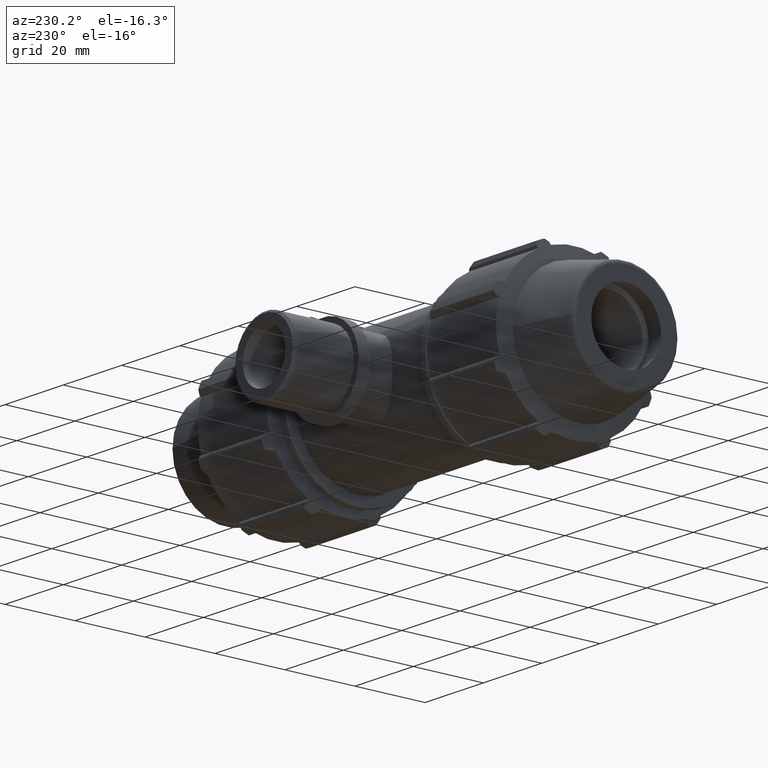
[diagram: clean part render]
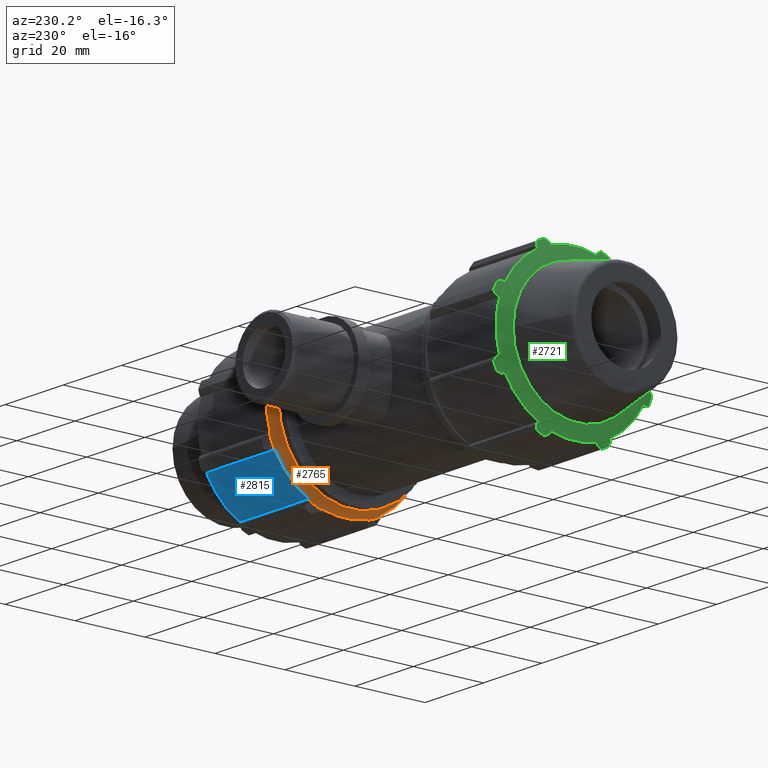
[diagram: same view with three faces highlighted in distinct colors, each labeled with its STEP entity id]
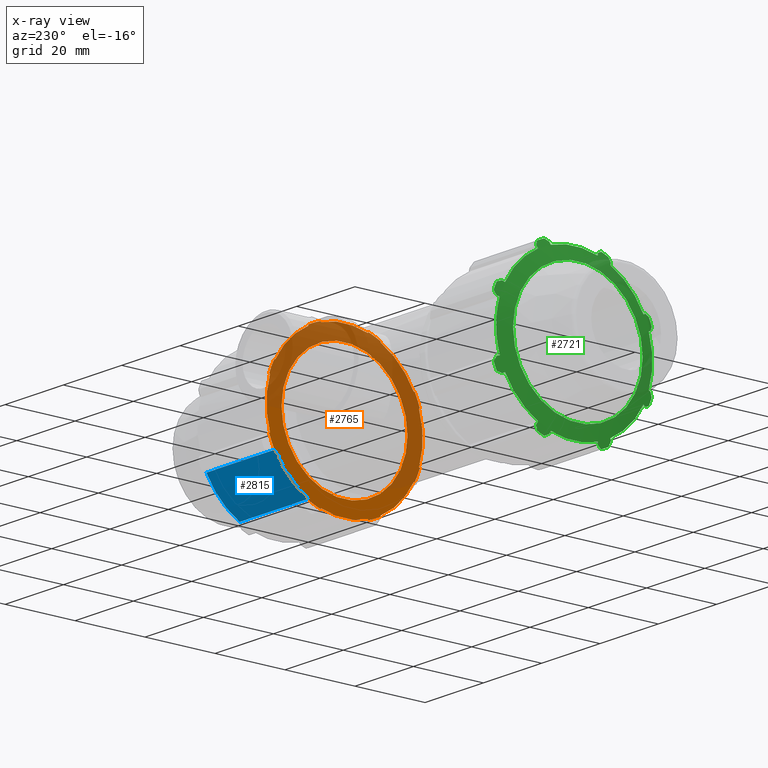
[diagram: x-ray of the same camera — body ghosted, the three highlighted faces saturated]
A machine part, auxiliary view with three faces highlighted in distinct colors.
The next image is the same camera in x-ray (body ghosted, the three faces saturated) — at least one of them is partly hidden behind the body in this view.
Their STEP definitions:

[orange] entity #2765 — the highlighted planar face has unit normal (-1, -0, 0).
#182=LINE('',#4429,#374);
#183=LINE('',#4433,#375);
#184=LINE('',#4437,#376);
#185=LINE('',#4441,#377);
#186=LINE('',#4445,#378);
#187=LINE('',#4449,#379);
#188=LINE('',#4453,#380);
#189=LINE('',#4457,#381);
#190=LINE('',#4461,#382);
#191=LINE('',#4465,#383);
#192=LINE('',#4469,#384);
#193=LINE('',#4473,#385);
#194=LINE('',#4477,#386);
#195=LINE('',#4481,#387);
#196=LINE('',#4485,#388);
#197=LINE('',#4488,#389);
#374=VECTOR('',#3507,0.240000000000005);
#375=VECTOR('',#3510,0.240000000000008);
#376=VECTOR('',#3513,0.239999999999996);
#377=VECTOR('',#3516,0.239999999999997);
#378=VECTOR('',#3519,0.239999999999993);
#379=VECTOR('',#3522,0.239999999999996);
#380=VECTOR('',#3525,0.239999999999996);
#381=VECTOR('',#3528,0.240000000000009);
#382=VECTOR('',#3531,0.240000000000002);
#383=VECTOR('',#3534,0.240000000000002);
#384=VECTOR('',#3537,0.24);
#385=VECTOR('',#3540,0.240000000000018);
#386=VECTOR('',#3543,0.240000000000005);
#387=VECTOR('',#3546,0.240000000000009);
#388=VECTOR('',#3549,0.240000000000009);
#389=VECTOR('',#3552,0.240000000000007);
#509=PLANE('',#2986);
#596=FACE_BOUND('',#878,.T.);
#699=FACE_OUTER_BOUND('',#877,.T.);
#877=EDGE_LOOP('',(#2119,#2120,#2121,#2122,#2123,#2124,#2125,#2126,#2127,
#2128,#2129,#2130,#2131,#2132,#2133,#2134,#2135,#2136,#2137,#2138,#2139,
#2140,#2141,#2142,#2143,#2144,#2145,#2146,#2147,#2148,#2149,#2150));
#878=EDGE_LOOP('',(#2151));
#1034=CIRCLE('',#2985,22.56);
#1035=CIRCLE('',#2987,22.32);
#1036=CIRCLE('',#2988,22.56);
#1037=CIRCLE('',#2989,22.32);
#1038=CIRCLE('',#2990,22.56);
#1039=CIRCLE('',#2991,22.32);
#1040=CIRCLE('',#2992,22.56);
#1041=CIRCLE('',#2993,22.32);
#1042=CIRCLE('',#2994,22.56);
#1043=CIRCLE('',#2995,22.32);
#1044=CIRCLE('',#2996,22.56);
#1045=CIRCLE('',#2997,22.32);
#1046=CIRCLE('',#2998,22.56);
#1047=CIRCLE('',#2999,22.32);
#1048=CIRCLE('',#3000,22.56);
#1049=CIRCLE('',#3001,22.32);
#1050=CIRCLE('',#3002,18.);
#1230=VERTEX_POINT('',#4422);
#1231=VERTEX_POINT('',#4424);
#1232=VERTEX_POINT('',#4428);
#1233=VERTEX_POINT('',#4430);
#1234=VERTEX_POINT('',#4432);
#1235=VERTEX_POINT('',#4434);
#1236=VERTEX_POINT('',#4436);
#1237=VERTEX_POINT('',#4438);
#1238=VERTEX_POINT('',#4440);
#1239=VERTEX_POINT('',#4442);
#1240=VERTEX_POINT('',#4444);
#1241=VERTEX_POINT('',#4446);
#1242=VERTEX_POINT('',#4448);
#1243=VERTEX_POINT('',#4450);
#1244=VERTEX_POINT('',#4452);
#1245=VERTEX_POINT('',#4454);
#1246=VERTEX_POINT('',#4456);
#1247=VERTEX_POINT('',#4458);
#1248=VERTEX_POINT('',#4460);
#1249=VERTEX_POINT('',#4462);
#1250=VERTEX_POINT('',#4464);
#1251=VERTEX_POINT('',#4466);
#1252=VERTEX_POINT('',#4468);
#1253=VERTEX_POINT('',#4470);
#1254=VERTEX_POINT('',#4472);
#1255=VERTEX_POINT('',#4474);
#1256=VERTEX_POINT('',#4476);
#1257=VERTEX_POINT('',#4478);
#1258=VERTEX_POINT('',#4480);
#1259=VERTEX_POINT('',#4482);
#1260=VERTEX_POINT('',#4484);
#1261=VERTEX_POINT('',#4486);
#1262=VERTEX_POINT('',#4489);
#1551=EDGE_CURVE('',#1230,#1231,#1034,.T.);
#1553=EDGE_CURVE('',#1230,#1232,#182,.T.);
#1554=EDGE_CURVE('',#1232,#1233,#1035,.T.);
#1555=EDGE_CURVE('',#1233,#1234,#183,.T.);
#1556=EDGE_CURVE('',#1235,#1234,#1036,.T.);
#1557=EDGE_CURVE('',#1235,#1236,#184,.T.);
#1558=EDGE_CURVE('',#1236,#1237,#1037,.T.);
#1559=EDGE_CURVE('',#1237,#1238,#185,.T.);
#1560=EDGE_CURVE('',#1239,#1238,#1038,.T.);
#1561=EDGE_CURVE('',#1239,#1240,#186,.T.);
#1562=EDGE_CURVE('',#1240,#1241,#1039,.T.);
#1563=EDGE_CURVE('',#1241,#1242,#187,.T.);
#1564=EDGE_CURVE('',#1243,#1242,#1040,.T.);
#1565=EDGE_CURVE('',#1243,#1244,#188,.T.);
#1566=EDGE_CURVE('',#1244,#1245,#1041,.T.);
#1567=EDGE_CURVE('',#1245,#1246,#189,.T.);
#1568=EDGE_CURVE('',#1247,#1246,#1042,.T.);
#1569=EDGE_CURVE('',#1247,#1248,#190,.T.);
#1570=EDGE_CURVE('',#1248,#1249,#1043,.T.);
#1571=EDGE_CURVE('',#1249,#1250,#191,.T.);
#1572=EDGE_CURVE('',#1251,#1250,#1044,.T.);
#1573=EDGE_CURVE('',#1251,#1252,#192,.T.);
#1574=EDGE_CURVE('',#1252,#1253,#1045,.T.);
#1575=EDGE_CURVE('',#1253,#1254,#193,.T.);
#1576=EDGE_CURVE('',#1255,#1254,#1046,.T.);
#1577=EDGE_CURVE('',#1255,#1256,#194,.T.);
#1578=EDGE_CURVE('',#1256,#1257,#1047,.T.);
#1579=EDGE_CURVE('',#1257,#1258,#195,.T.);
#1580=EDGE_CURVE('',#1259,#1258,#1048,.T.);
#1581=EDGE_CURVE('',#1259,#1260,#196,.T.);
#1582=EDGE_CURVE('',#1260,#1261,#1049,.T.);
#1583=EDGE_CURVE('',#1261,#1231,#197,.T.);
#1584=EDGE_CURVE('',#1262,#1262,#1050,.T.);
#2119=ORIENTED_EDGE('',*,*,#1551,.F.);
#2120=ORIENTED_EDGE('',*,*,#1553,.T.);
#2121=ORIENTED_EDGE('',*,*,#1554,.T.);
#2122=ORIENTED_EDGE('',*,*,#1555,.T.);
#2123=ORIENTED_EDGE('',*,*,#1556,.F.);
#2124=ORIENTED_EDGE('',*,*,#1557,.T.);
#2125=ORIENTED_EDGE('',*,*,#1558,.T.);
#2126=ORIENTED_EDGE('',*,*,#1559,.T.);
#2127=ORIENTED_EDGE('',*,*,#1560,.F.);
#2128=ORIENTED_EDGE('',*,*,#1561,.T.);
#2129=ORIENTED_EDGE('',*,*,#1562,.T.);
#2130=ORIENTED_EDGE('',*,*,#1563,.T.);
#2131=ORIENTED_EDGE('',*,*,#1564,.F.);
#2132=ORIENTED_EDGE('',*,*,#1565,.T.);
#2133=ORIENTED_EDGE('',*,*,#1566,.T.);
#2134=ORIENTED_EDGE('',*,*,#1567,.T.);
#2135=ORIENTED_EDGE('',*,*,#1568,.F.);
#2136=ORIENTED_EDGE('',*,*,#1569,.T.);
#2137=ORIENTED_EDGE('',*,*,#1570,.T.);
#2138=ORIENTED_EDGE('',*,*,#1571,.T.);
#2139=ORIENTED_EDGE('',*,*,#1572,.F.);
#2140=ORIENTED_EDGE('',*,*,#1573,.T.);
#2141=ORIENTED_EDGE('',*,*,#1574,.T.);
#2142=ORIENTED_EDGE('',*,*,#1575,.T.);
#2143=ORIENTED_EDGE('',*,*,#1576,.F.);
#2144=ORIENTED_EDGE('',*,*,#1577,.T.);
#2145=ORIENTED_EDGE('',*,*,#1578,.T.);
#2146=ORIENTED_EDGE('',*,*,#1579,.T.);
#2147=ORIENTED_EDGE('',*,*,#1580,.F.);
#2148=ORIENTED_EDGE('',*,*,#1581,.T.);
#2149=ORIENTED_EDGE('',*,*,#1582,.T.);
#2150=ORIENTED_EDGE('',*,*,#1583,.T.);
#2151=ORIENTED_EDGE('',*,*,#1584,.T.);
#2765=ADVANCED_FACE('',(#699,#596),#509,.T.);
#2985=AXIS2_PLACEMENT_3D('',#4425,#3502,#3503);
#2986=AXIS2_PLACEMENT_3D('',#4427,#3505,#3506);
#2987=AXIS2_PLACEMENT_3D('',#4431,#3508,#3509);
#2988=AXIS2_PLACEMENT_3D('',#4435,#3511,#3512);
#2989=AXIS2_PLACEMENT_3D('',#4439,#3514,#3515);
#2990=AXIS2_PLACEMENT_3D('',#4443,#3517,#3518);
#2991=AXIS2_PLACEMENT_3D('',#4447,#3520,#3521);
#2992=AXIS2_PLACEMENT_3D('',#4451,#3523,#3524);
#2993=AXIS2_PLACEMENT_3D('',#4455,#3526,#3527);
#2994=AXIS2_PLACEMENT_3D('',#4459,#3529,#3530);
#2995=AXIS2_PLACEMENT_3D('',#4463,#3532,#3533);
#2996=AXIS2_PLACEMENT_3D('',#4467,#3535,#3536);
#2997=AXIS2_PLACEMENT_3D('',#4471,#3538,#3539);
#2998=AXIS2_PLACEMENT_3D('',#4475,#3541,#3542);
#2999=AXIS2_PLACEMENT_3D('',#4479,#3544,#3545);
#3000=AXIS2_PLACEMENT_3D('',#4483,#3547,#3548);
#3001=AXIS2_PLACEMENT_3D('',#4487,#3550,#3551);
#3002=AXIS2_PLACEMENT_3D('',#4490,#3553,#3554);
#3502=DIRECTION('center_axis',(1.,4.01311517903141E-16,0.));
#3503=DIRECTION('ref_axis',(4.01311517903142E-16,-1.,0.));
#3505=DIRECTION('center_axis',(-1.,-4.01311517903141E-16,0.));
#3506=DIRECTION('ref_axis',(0.,0.,1.));
#3507=DIRECTION('',(-1.20676700841338E-16,0.300705799504273,-0.953716950748227));
#3508=DIRECTION('center_axis',(-1.,-4.01311517903141E-16,0.));
#3509=DIRECTION('ref_axis',(3.88945856522847E-16,0.300705799504273,-0.953716950748227));
#3510=DIRECTION('',(-1.20676700841337E-16,0.300705799504273,0.953716950748227));
#3511=DIRECTION('center_axis',(1.,4.01311517903141E-16,0.));
#3512=DIRECTION('ref_axis',(-4.01311517903142E-16,1.,0.));
#3513=DIRECTION('',(1.85305036867022E-16,-0.461748613235034,-0.887010833178222));
#3514=DIRECTION('center_axis',(-1.,-4.01311517903141E-16,0.));
#3515=DIRECTION('ref_axis',(3.88945856522847E-16,-0.461748613235034,-0.887010833178222));
#3516=DIRECTION('',(-3.55967663859282E-16,0.887010833178222,0.461748613235034));
#3517=DIRECTION('center_axis',(1.,4.01311517903141E-16,0.));
#3518=DIRECTION('ref_axis',(-4.01311517903142E-16,1.,0.));
#3519=DIRECTION('',(3.82737597154727E-16,-0.953716950748227,-0.300705799504273));
#3520=DIRECTION('center_axis',(-1.,-4.01311517903141E-16,0.));
#3521=DIRECTION('ref_axis',(3.88945856522847E-16,-0.953716950748227,-0.300705799504273));
#3522=DIRECTION('',(-3.82737597154727E-16,0.953716950748227,-0.300705799504273));
#3523=DIRECTION('center_axis',(1.,4.01311517903141E-16,0.));
#3524=DIRECTION('ref_axis',(-4.01311517903142E-16,1.,0.));
#3525=DIRECTION('',(3.55967663859282E-16,-0.887010833178222,0.461748613235034));
#3526=DIRECTION('center_axis',(-1.,-4.01311517903141E-16,0.));
#3527=DIRECTION('ref_axis',(3.88945856522847E-16,-0.887010833178221,0.461748613235034));
#3528=DIRECTION('',(-1.85305036867022E-16,0.461748613235034,-0.887010833178222));
#3529=DIRECTION('center_axis',(1.,4.01311517903141E-16,0.));
#3530=DIRECTION('ref_axis',(-4.01311517903142E-16,1.,0.));
#3531=DIRECTION('',(1.20676700841338E-16,-0.300705799504273,0.953716950748227));
#3532=DIRECTION('center_axis',(-1.,-4.01311517903141E-16,0.));
#3533=DIRECTION('ref_axis',(3.88945856522847E-16,-0.300705799504273,0.953716950748227));
#3534=DIRECTION('',(1.20676700841338E-16,-0.300705799504273,-0.953716950748227));
#3535=DIRECTION('center_axis',(1.,4.01311517903141E-16,0.));
#3536=DIRECTION('ref_axis',(4.01311517903142E-16,-1.,0.));
#3537=DIRECTION('',(-1.85305036867022E-16,0.461748613235034,0.887010833178222));
#3538=DIRECTION('center_axis',(-1.,-4.01311517903141E-16,0.));
#3539=DIRECTION('ref_axis',(3.88945856522847E-16,0.461748613235034,0.887010833178221));
#3540=DIRECTION('',(3.55967663859282E-16,-0.887010833178222,-0.461748613235034));
#3541=DIRECTION('center_axis',(1.,4.01311517903141E-16,0.));
#3542=DIRECTION('ref_axis',(4.01311517903142E-16,-1.,0.));
#3543=DIRECTION('',(-3.82737597154727E-16,0.953716950748227,0.300705799504273));
#3544=DIRECTION('center_axis',(-1.,-4.01311517903141E-16,0.));
#3545=DIRECTION('ref_axis',(3.88945856522847E-16,0.953716950748227,0.300705799504273));
#3546=DIRECTION('',(3.82737597154727E-16,-0.953716950748227,0.300705799504273));
#3547=DIRECTION('center_axis',(1.,4.01311517903141E-16,0.));
#3548=DIRECTION('ref_axis',(4.01311517903142E-16,-1.,0.));
#3549=DIRECTION('',(-3.55967663859282E-16,0.887010833178222,-0.461748613235034));
#3550=DIRECTION('center_axis',(-1.,-4.01311517903141E-16,0.));
#3551=DIRECTION('ref_axis',(3.88945856522847E-16,0.887010833178222,-0.461748613235034));
#3552=DIRECTION('',(1.85305036867022E-16,-0.461748613235034,0.887010833178222));
#3553=DIRECTION('center_axis',(1.,4.01311517903141E-16,0.));
#3554=DIRECTION('ref_axis',(0.,0.,-1.));
#4422=CARTESIAN_POINT('',(27.6,-6.7839228368164,21.51585440888));
#4424=CARTESIAN_POINT('',(27.6,-10.4170487145824,20.0109643965007));
#4425=CARTESIAN_POINT('Origin',(27.6,1.10761978941267E-14,0.));
#4427=CARTESIAN_POINT('Origin',(27.6,24.,0.));
#4428=CARTESIAN_POINT('',(27.6,-6.71175344493536,21.2869623407004));
#4429=CARTESIAN_POINT('',(27.6,-2.52338185978522,8.00314479087244));
#4430=CARTESIAN_POINT('',(27.6,6.71175344493539,21.2869623407004));
#4431=CARTESIAN_POINT('Origin',(27.6,1.57032032117994E-14,-4.62700531767269E-15));
#4432=CARTESIAN_POINT('',(27.6,6.78392283681641,21.51585440888));
#4433=CARTESIAN_POINT('',(27.6,4.44096445673375,14.0849397884565));
#4434=CARTESIAN_POINT('',(27.6,10.4170487145824,20.0109643965007));
#4435=CARTESIAN_POINT('Origin',(27.6,1.10761978941267E-14,0.));
#4436=CARTESIAN_POINT('',(27.6,10.306229047406,19.7980817965379));
#4437=CARTESIAN_POINT('',(27.6,8.09952474071414,15.5590422638726));
#4438=CARTESIAN_POINT('',(27.6,19.7980817965379,10.306229047406));
#4439=CARTESIAN_POINT('Origin',(27.6,1.24314163750868E-14,-3.27178683671258E-15));
#4440=CARTESIAN_POINT('',(27.6,20.0109643965007,10.4170487145824));
#4441=CARTESIAN_POINT('',(27.6,19.3404995163752,10.0680267894369));
#4442=CARTESIAN_POINT('',(27.6,21.51585440888,6.78392283681641));
#4443=CARTESIAN_POINT('Origin',(27.6,1.10761978941267E-14,0.));
#4444=CARTESIAN_POINT('',(27.6,21.2869623407004,6.71175344493538));
#4445=CARTESIAN_POINT('',(27.6,22.3595156747127,7.04992821215756));
#4446=CARTESIAN_POINT('',(27.6,21.2869623407004,-6.71175344493538));
#4447=CARTESIAN_POINT('Origin',(27.6,1.10761978941267E-14,0.));
#4448=CARTESIAN_POINT('',(27.6,21.51585440888,-6.7839228368164));
#4449=CARTESIAN_POINT('',(27.6,21.5583934360842,-6.79733534057396));
#4450=CARTESIAN_POINT('',(27.6,20.0109643965007,-10.4170487145824));
#4451=CARTESIAN_POINT('Origin',(27.6,1.10761978941267E-14,0.));
#4452=CARTESIAN_POINT('',(27.6,19.7980817965379,-10.306229047406));
#4453=CARTESIAN_POINT('',(27.6,20.0855886162449,-10.4558956245544));
#4454=CARTESIAN_POINT('',(27.6,10.306229047406,-19.7980817965379));
#4455=CARTESIAN_POINT('Origin',(27.6,1.24314163750868E-14,3.27178683671258E-15));
#4456=CARTESIAN_POINT('',(27.6,10.4170487145824,-20.0109643965007));
#4457=CARTESIAN_POINT('',(27.6,7.71165590559671,-14.8139531640029));
#4458=CARTESIAN_POINT('',(27.6,6.78392283681642,-21.51585440888));
#4459=CARTESIAN_POINT('Origin',(27.6,1.10761978941267E-14,0.));
#4460=CARTESIAN_POINT('',(27.6,6.71175344493539,-21.2869623407004));
#4461=CARTESIAN_POINT('',(27.6,4.69355732831734,-14.886062027085));
#4462=CARTESIAN_POINT('',(27.6,-6.71175344493536,-21.2869623407004));
#4463=CARTESIAN_POINT('Origin',(27.6,1.57032032117994E-14,4.6270053176727E-15));
#4464=CARTESIAN_POINT('',(27.6,-6.78392283681639,-21.51585440888));
#4465=CARTESIAN_POINT('',(27.6,-2.27078898820163,-7.20202255224394));
#4466=CARTESIAN_POINT('',(27.6,-10.4170487145823,-20.0109643965007));
#4467=CARTESIAN_POINT('Origin',(27.6,1.10761978941267E-14,0.));
#4468=CARTESIAN_POINT('',(27.6,-10.3062290474059,-19.7980817965379));
#4469=CARTESIAN_POINT('',(27.6,-2.98244197692666,-5.72921773240471));
#4470=CARTESIAN_POINT('',(27.6,-19.7980817965379,-10.306229047406));
#4471=CARTESIAN_POINT('Origin',(27.6,1.8974990048512E-14,3.27178683671258E-15));
#4472=CARTESIAN_POINT('',(27.6,-20.0109643965007,-10.4170487145824));
#4473=CARTESIAN_POINT('',(27.6,-0.457582280162667,-0.238202257969025));
#4474=CARTESIAN_POINT('',(27.6,-21.51585440888,-6.78392283681641));
#4475=CARTESIAN_POINT('Origin',(27.6,1.10761978941267E-14,0.));
#4476=CARTESIAN_POINT('',(27.6,-21.2869623407004,-6.71175344493537));
#4477=CARTESIAN_POINT('',(27.6,-0.529691143244754,-0.167010975945));
#4478=CARTESIAN_POINT('',(27.6,-21.2869623407004,6.71175344493538));
#4479=CARTESIAN_POINT('Origin',(27.6,2.03302085294721E-14,1.97215226305253E-30));
#4480=CARTESIAN_POINT('',(27.6,-21.51585440888,6.7839228368164));
#4481=CARTESIAN_POINT('',(27.6,0.271431095383751,-0.0855818956385884));
#4482=CARTESIAN_POINT('',(27.6,-20.0109643965007,10.4170487145824));
#4483=CARTESIAN_POINT('Origin',(27.6,1.10761978941267E-14,0.));
#4484=CARTESIAN_POINT('',(27.6,-19.7980817965379,10.306229047406));
#4485=CARTESIAN_POINT('',(27.6,-1.20267138003237,0.626071093086453));
#4486=CARTESIAN_POINT('',(27.6,-10.3062290474059,19.7980817965379));
#4487=CARTESIAN_POINT('Origin',(27.6,1.8974990048512E-14,-3.27178683671258E-15));
#4488=CARTESIAN_POINT('',(27.6,-2.59457314180924,4.984128632535));
#4489=CARTESIAN_POINT('',(27.6,18.,0.));
#4490=CARTESIAN_POINT('Origin',(27.6,1.10761978941267E-14,0.));

[blue] entity #2815 — the highlighted cylindrical surface (partial cylindrical patch) has radius 22.32 mm, axis along (1, 0, -0).
#230=LINE('',#4626,#422);
#257=LINE('',#4780,#449);
#422=VECTOR('',#3629,23.6052845743094);
#449=VECTOR('',#3732,23.6052845743094);
#749=FACE_OUTER_BOUND('',#937,.T.);
#937=EDGE_LOOP('',(#2407,#2408,#2409,#2410));
#1041=CIRCLE('',#2993,22.32);
#1076=CIRCLE('',#3057,22.32);
#1244=VERTEX_POINT('',#4452);
#1245=VERTEX_POINT('',#4454);
#1299=VERTEX_POINT('',#4624);
#1342=VERTEX_POINT('',#4770);
#1566=EDGE_CURVE('',#1244,#1245,#1041,.T.);
#1637=EDGE_CURVE('',#1244,#1299,#230,.T.);
#1697=EDGE_CURVE('',#1342,#1299,#1076,.T.);
#1702=EDGE_CURVE('',#1245,#1342,#257,.T.);
#2407=ORIENTED_EDGE('',*,*,#1697,.F.);
#2408=ORIENTED_EDGE('',*,*,#1702,.F.);
#2409=ORIENTED_EDGE('',*,*,#1566,.F.);
#2410=ORIENTED_EDGE('',*,*,#1637,.T.);
#2511=CYLINDRICAL_SURFACE('',#3086,22.32);
#2815=ADVANCED_FACE('',(#749),#2511,.T.);
#2993=AXIS2_PLACEMENT_3D('',#4455,#3526,#3527);
#3057=AXIS2_PLACEMENT_3D('',#4772,#3720,#3721);
#3086=AXIS2_PLACEMENT_3D('',#4829,#3799,#3800);
#3526=DIRECTION('center_axis',(-1.,-4.01311517903141E-16,0.));
#3527=DIRECTION('ref_axis',(3.88945856522847E-16,-0.887010833178221,0.461748613235034));
#3629=DIRECTION('',(1.,2.88373036094144E-16,-2.88373036094144E-16));
#3720=DIRECTION('center_axis',(1.,2.88373036094144E-16,-2.88373036094144E-16));
#3721=DIRECTION('ref_axis',(3.88945856522847E-16,-0.887010833178221,0.461748613235034));
#3732=DIRECTION('',(1.,2.88373036094144E-16,-2.88373036094144E-16));
#3799=DIRECTION('center_axis',(1.,2.88373036094144E-16,-2.88373036094144E-16));
#3800=DIRECTION('ref_axis',(3.88945856522847E-16,-0.887010833178221,0.461748613235034));
#4452=CARTESIAN_POINT('',(27.6,19.7980817965379,-10.306229047406));
#4454=CARTESIAN_POINT('',(27.6,10.306229047406,-19.7980817965379));
#4455=CARTESIAN_POINT('Origin',(27.6,1.24314163750868E-14,3.27178683671258E-15));
#4624=CARTESIAN_POINT('',(51.2052845743094,19.7980817965379,-10.306229047406));
#4626=CARTESIAN_POINT('',(27.6,19.7980817965379,-10.306229047406));
#4770=CARTESIAN_POINT('',(51.2052845743094,10.306229047406,-19.7980817965379));
#4772=CARTESIAN_POINT('Origin',(51.2052845743094,1.92385439556467E-14,-3.53534074384727E-15));
#4780=CARTESIAN_POINT('',(27.6,10.306229047406,-19.7980817965379));
#4829=CARTESIAN_POINT('Origin',(27.6,1.24314163750868E-14,3.27178683671258E-15));

[green] entity #2721 — the highlighted conical surface has half-angle 72 deg.
#22=(
BOUNDED_CURVE()
B_SPLINE_CURVE(2,(#4052,#4053,#4054),.UNSPECIFIED.,.F.,.F.)
B_SPLINE_CURVE_WITH_KNOTS((3,3),(0.,0.121463682059246),.UNSPECIFIED.)
CURVE()
GEOMETRIC_REPRESENTATION_ITEM()
RATIONAL_B_SPLINE_CURVE((1.,1.00305784693904,1.0053037177392))
REPRESENTATION_ITEM('')
);
#25=(
BOUNDED_CURVE()
B_SPLINE_CURVE(2,(#4078,#4079,#4080),.UNSPECIFIED.,.F.,.F.)
B_SPLINE_CURVE_WITH_KNOTS((3,3),(0.,0.121463682059244),.UNSPECIFIED.)
CURVE()
GEOMETRIC_REPRESENTATION_ITEM()
RATIONAL_B_SPLINE_CURVE((1.,1.00305784693904,1.00530371773921))
REPRESENTATION_ITEM('')
);
#28=(
BOUNDED_CURVE()
B_SPLINE_CURVE(2,(#4104,#4105,#4106),.UNSPECIFIED.,.F.,.F.)
B_SPLINE_CURVE_WITH_KNOTS((3,3),(0.,0.121463682059266),.UNSPECIFIED.)
CURVE()
GEOMETRIC_REPRESENTATION_ITEM()
RATIONAL_B_SPLINE_CURVE((1.,1.00305784693901,1.00530371773915))
REPRESENTATION_ITEM('')
);
#31=(
BOUNDED_CURVE()
B_SPLINE_CURVE(2,(#4130,#4131,#4132),.UNSPECIFIED.,.F.,.F.)
B_SPLINE_CURVE_WITH_KNOTS((3,3),(0.,0.121463682059253),.UNSPECIFIED.)
CURVE()
GEOMETRIC_REPRESENTATION_ITEM()
RATIONAL_B_SPLINE_CURVE((1.,1.00305784693903,1.00530371773919))
REPRESENTATION_ITEM('')
);
#34=(
BOUNDED_CURVE()
B_SPLINE_CURVE(2,(#4156,#4157,#4158),.UNSPECIFIED.,.F.,.F.)
B_SPLINE_CURVE_WITH_KNOTS((3,3),(0.,0.12146368205926),.UNSPECIFIED.)
CURVE()
GEOMETRIC_REPRESENTATION_ITEM()
RATIONAL_B_SPLINE_CURVE((1.,1.00305784693904,1.00530371773919))
REPRESENTATION_ITEM('')
);
#37=(
BOUNDED_CURVE()
B_SPLINE_CURVE(2,(#4182,#4183,#4184),.UNSPECIFIED.,.F.,.F.)
B_SPLINE_CURVE_WITH_KNOTS((3,3),(0.,0.121463682059272),.UNSPECIFIED.)
CURVE()
GEOMETRIC_REPRESENTATION_ITEM()
RATIONAL_B_SPLINE_CURVE((1.,1.00305784693903,1.00530371773919))
REPRESENTATION_ITEM('')
);
#40=(
BOUNDED_CURVE()
B_SPLINE_CURVE(2,(#4203,#4204,#4205),.UNSPECIFIED.,.F.,.F.)
B_SPLINE_CURVE_WITH_KNOTS((3,3),(0.,0.121463682059213),.UNSPECIFIED.)
CURVE()
GEOMETRIC_REPRESENTATION_ITEM()
RATIONAL_B_SPLINE_CURVE((1.,1.00305784693905,1.00530371773922))
REPRESENTATION_ITEM('')
);
#41=(
BOUNDED_CURVE()
B_SPLINE_CURVE(2,(#4214,#4215,#4216),.UNSPECIFIED.,.F.,.F.)
B_SPLINE_CURVE_WITH_KNOTS((3,3),(0.793384256457829,0.914847938517054),
 .UNSPECIFIED.)
CURVE()
GEOMETRIC_REPRESENTATION_ITEM()
RATIONAL_B_SPLINE_CURVE((1.0053037177392,1.00305784693904,1.))
REPRESENTATION_ITEM('')
);
#44=(
BOUNDED_CURVE()
B_SPLINE_CURVE(2,(#4240,#4241,#4242),.UNSPECIFIED.,.F.,.F.)
B_SPLINE_CURVE_WITH_KNOTS((3,3),(0.,0.121463682059226),.UNSPECIFIED.)
CURVE()
GEOMETRIC_REPRESENTATION_ITEM()
RATIONAL_B_SPLINE_CURVE((1.,1.00305784693906,1.00530371773924))
REPRESENTATION_ITEM('')
);
#45=(
BOUNDED_CURVE()
B_SPLINE_CURVE(2,(#4258,#4259,#4260),.UNSPECIFIED.,.F.,.F.)
B_SPLINE_CURVE_WITH_KNOTS((3,3),(0.79338425645784,0.914847938517086),
 .UNSPECIFIED.)
CURVE()
GEOMETRIC_REPRESENTATION_ITEM()
RATIONAL_B_SPLINE_CURVE((1.00530371773925,1.00305784693907,1.))
REPRESENTATION_ITEM('')
);
#46=(
BOUNDED_CURVE()
B_SPLINE_CURVE(2,(#4267,#4268,#4269),.UNSPECIFIED.,.F.,.F.)
B_SPLINE_CURVE_WITH_KNOTS((3,3),(0.793384256457831,0.91484793851708),
 .UNSPECIFIED.)
CURVE()
GEOMETRIC_REPRESENTATION_ITEM()
RATIONAL_B_SPLINE_CURVE((1.0053037177392,1.00305784693904,1.))
REPRESENTATION_ITEM('')
);
#47=(
BOUNDED_CURVE()
B_SPLINE_CURVE(2,(#4276,#4277,#4278),.UNSPECIFIED.,.F.,.F.)
B_SPLINE_CURVE_WITH_KNOTS((3,3),(0.79338425645783,0.914847938517084),
 .UNSPECIFIED.)
CURVE()
GEOMETRIC_REPRESENTATION_ITEM()
RATIONAL_B_SPLINE_CURVE((1.00530371773918,1.00305784693903,1.))
REPRESENTATION_ITEM('')
);
#48=(
BOUNDED_CURVE()
B_SPLINE_CURVE(2,(#4285,#4286,#4287),.UNSPECIFIED.,.F.,.F.)
B_SPLINE_CURVE_WITH_KNOTS((3,3),(0.793384256457828,0.914847938517081),
 .UNSPECIFIED.)
CURVE()
GEOMETRIC_REPRESENTATION_ITEM()
RATIONAL_B_SPLINE_CURVE((1.00530371773918,1.00305784693903,1.))
REPRESENTATION_ITEM('')
);
#49=(
BOUNDED_CURVE()
B_SPLINE_CURVE(2,(#4294,#4295,#4296),.UNSPECIFIED.,.F.,.F.)
B_SPLINE_CURVE_WITH_KNOTS((3,3),(0.793384256457811,0.914847938517082),
 .UNSPECIFIED.)
CURVE()
GEOMETRIC_REPRESENTATION_ITEM()
RATIONAL_B_SPLINE_CURVE((1.00530371773913,1.003057846939,1.))
REPRESENTATION_ITEM('')
);
#50=(
BOUNDED_CURVE()
B_SPLINE_CURVE(2,(#4303,#4304,#4305),.UNSPECIFIED.,.F.,.F.)
B_SPLINE_CURVE_WITH_KNOTS((3,3),(0.793384256457827,0.914847938517078),
 .UNSPECIFIED.)
CURVE()
GEOMETRIC_REPRESENTATION_ITEM()
RATIONAL_B_SPLINE_CURVE((1.0053037177392,1.00305784693904,1.))
REPRESENTATION_ITEM('')
);
#51=(
BOUNDED_CURVE()
B_SPLINE_CURVE(2,(#4312,#4313,#4314),.UNSPECIFIED.,.F.,.F.)
B_SPLINE_CURVE_WITH_KNOTS((3,3),(0.793384256457801,0.914847938517057),
 .UNSPECIFIED.)
CURVE()
GEOMETRIC_REPRESENTATION_ITEM()
RATIONAL_B_SPLINE_CURVE((1.00530371773915,1.00305784693901,1.))
REPRESENTATION_ITEM('')
);
#103=LINE('',#4047,#295);
#109=LINE('',#4073,#301);
#115=LINE('',#4099,#307);
#121=LINE('',#4125,#313);
#127=LINE('',#4151,#319);
#133=LINE('',#4177,#325);
#145=LINE('',#4235,#337);
#148=LINE('',#4262,#340);
#149=LINE('',#4271,#341);
#150=LINE('',#4280,#342);
#151=LINE('',#4289,#343);
#152=LINE('',#4298,#344);
#153=LINE('',#4307,#345);
#154=LINE('',#4316,#346);
#155=LINE('',#4319,#347);
#156=LINE('',#4321,#348);
#295=VECTOR('',#3206,0.757052801451537);
#301=VECTOR('',#3220,0.757052801451536);
#307=VECTOR('',#3234,0.757052801451533);
#313=VECTOR('',#3248,0.757052801451544);
#319=VECTOR('',#3262,0.75705280145154);
#325=VECTOR('',#3276,0.757052801451547);
#337=VECTOR('',#3308,0.757052801451548);
#340=VECTOR('',#3331,0.757052801451539);
#341=VECTOR('',#3336,0.757052801451532);
#342=VECTOR('',#3341,0.757052801451534);
#343=VECTOR('',#3346,0.757052801451528);
#344=VECTOR('',#3351,0.757052801451529);
#345=VECTOR('',#3356,0.757052801451537);
#346=VECTOR('',#3361,0.757052801451525);
#347=VECTOR('',#3364,0.757052801451547);
#348=VECTOR('',#3365,0.757052801451541);
#557=CONICAL_SURFACE('',#2914,21.2599683306278,72.);
#584=FACE_BOUND('',#822,.T.);
#655=FACE_OUTER_BOUND('',#821,.T.);
#821=EDGE_LOOP('',(#1909,#1910,#1911,#1912,#1913,#1914,#1915,#1916,#1917,
#1918,#1919,#1920,#1921,#1922,#1923,#1924,#1925,#1926,#1927,#1928,#1929,
#1930,#1931,#1932,#1933,#1934,#1935,#1936,#1937,#1938,#1939,#1940,#1941,
#1942,#1943,#1944,#1945,#1946,#1947,#1948,#1949,#1950,#1951,#1952,#1953,
#1954,#1955,#1956));
#822=EDGE_LOOP('',(#1957));
#1001=CIRCLE('',#2901,24.);
#1007=CIRCLE('',#2915,24.);
#1008=CIRCLE('',#2916,22.32);
#1009=CIRCLE('',#2917,24.);
#1010=CIRCLE('',#2918,22.32);
#1011=CIRCLE('',#2919,24.);
#1012=CIRCLE('',#2920,22.32);
#1013=CIRCLE('',#2921,24.);
#1014=CIRCLE('',#2922,22.32);
#1015=CIRCLE('',#2923,24.);
#1016=CIRCLE('',#2924,22.32);
#1017=CIRCLE('',#2925,24.);
#1018=CIRCLE('',#2926,22.32);
#1019=CIRCLE('',#2927,24.);
#1020=CIRCLE('',#2928,22.32);
#1021=CIRCLE('',#2929,22.32);
#1022=CIRCLE('',#2930,18.5199366612556);
#1135=VERTEX_POINT('',#4044);
#1136=VERTEX_POINT('',#4046);
#1137=VERTEX_POINT('',#4050);
#1142=VERTEX_POINT('',#4070);
#1143=VERTEX_POINT('',#4072);
#1144=VERTEX_POINT('',#4076);
#1149=VERTEX_POINT('',#4096);
#1150=VERTEX_POINT('',#4098);
#1151=VERTEX_POINT('',#4102);
#1156=VERTEX_POINT('',#4122);
#1157=VERTEX_POINT('',#4124);
#1158=VERTEX_POINT('',#4128);
#1163=VERTEX_POINT('',#4148);
#1164=VERTEX_POINT('',#4150);
#1165=VERTEX_POINT('',#4154);
#1170=VERTEX_POINT('',#4174);
#1171=VERTEX_POINT('',#4176);
#1172=VERTEX_POINT('',#4180);
#1177=VERTEX_POINT('',#4200);
#1178=VERTEX_POINT('',#4202);
#1179=VERTEX_POINT('',#4208);
#1180=VERTEX_POINT('',#4212);
#1185=VERTEX_POINT('',#4232);
#1186=VERTEX_POINT('',#4234);
#1187=VERTEX_POINT('',#4238);
#1192=VERTEX_POINT('',#4255);
#1193=VERTEX_POINT('',#4257);
#1194=VERTEX_POINT('',#4261);
#1195=VERTEX_POINT('',#4264);
#1196=VERTEX_POINT('',#4266);
#1197=VERTEX_POINT('',#4270);
#1198=VERTEX_POINT('',#4273);
#1199=VERTEX_POINT('',#4275);
#1200=VERTEX_POINT('',#4279);
#1201=VERTEX_POINT('',#4282);
#1202=VERTEX_POINT('',#4284);
#1203=VERTEX_POINT('',#4288);
#1204=VERTEX_POINT('',#4291);
#1205=VERTEX_POINT('',#4293);
#1206=VERTEX_POINT('',#4297);
#1207=VERTEX_POINT('',#4300);
#1208=VERTEX_POINT('',#4302);
#1209=VERTEX_POINT('',#4306);
#1210=VERTEX_POINT('',#4309);
#1211=VERTEX_POINT('',#4311);
#1212=VERTEX_POINT('',#4315);
#1213=VERTEX_POINT('',#4317);
#1214=VERTEX_POINT('',#4320);
#1215=VERTEX_POINT('',#4323);
#1402=EDGE_CURVE('',#1136,#1135,#103,.T.);
#1405=EDGE_CURVE('',#1137,#1135,#22,.T.);
#1412=EDGE_CURVE('',#1143,#1142,#109,.T.);
#1415=EDGE_CURVE('',#1144,#1142,#25,.T.);
#1422=EDGE_CURVE('',#1150,#1149,#115,.T.);
#1425=EDGE_CURVE('',#1151,#1149,#28,.T.);
#1432=EDGE_CURVE('',#1157,#1156,#121,.T.);
#1435=EDGE_CURVE('',#1158,#1156,#31,.T.);
#1442=EDGE_CURVE('',#1164,#1163,#127,.T.);
#1445=EDGE_CURVE('',#1165,#1163,#34,.T.);
#1452=EDGE_CURVE('',#1171,#1170,#133,.T.);
#1455=EDGE_CURVE('',#1172,#1170,#37,.T.);
#1462=EDGE_CURVE('',#1177,#1178,#40,.T.);
#1465=EDGE_CURVE('',#1179,#1177,#1001,.T.);
#1467=EDGE_CURVE('',#1180,#1179,#41,.T.);
#1474=EDGE_CURVE('',#1186,#1185,#145,.T.);
#1477=EDGE_CURVE('',#1187,#1185,#44,.T.);
#1482=EDGE_CURVE('',#1192,#1172,#1007,.T.);
#1483=EDGE_CURVE('',#1193,#1192,#45,.T.);
#1484=EDGE_CURVE('',#1193,#1194,#148,.T.);
#1485=EDGE_CURVE('',#1194,#1164,#1008,.T.);
#1486=EDGE_CURVE('',#1195,#1165,#1009,.T.);
#1487=EDGE_CURVE('',#1196,#1195,#46,.T.);
#1488=EDGE_CURVE('',#1196,#1197,#149,.T.);
#1489=EDGE_CURVE('',#1197,#1157,#1010,.T.);
#1490=EDGE_CURVE('',#1198,#1158,#1011,.T.);
#1491=EDGE_CURVE('',#1199,#1198,#47,.T.);
#1492=EDGE_CURVE('',#1199,#1200,#150,.T.);
#1493=EDGE_CURVE('',#1200,#1150,#1012,.T.);
#1494=EDGE_CURVE('',#1201,#1151,#1013,.T.);
#1495=EDGE_CURVE('',#1202,#1201,#48,.T.);
#1496=EDGE_CURVE('',#1202,#1203,#151,.T.);
#1497=EDGE_CURVE('',#1203,#1143,#1014,.T.);
#1498=EDGE_CURVE('',#1204,#1144,#1015,.T.);
#1499=EDGE_CURVE('',#1205,#1204,#49,.T.);
#1500=EDGE_CURVE('',#1205,#1206,#152,.T.);
#1501=EDGE_CURVE('',#1206,#1136,#1016,.T.);
#1502=EDGE_CURVE('',#1207,#1137,#1017,.T.);
#1503=EDGE_CURVE('',#1208,#1207,#50,.T.);
#1504=EDGE_CURVE('',#1208,#1209,#153,.T.);
#1505=EDGE_CURVE('',#1209,#1186,#1018,.T.);
#1506=EDGE_CURVE('',#1210,#1187,#1019,.T.);
#1507=EDGE_CURVE('',#1211,#1210,#51,.T.);
#1508=EDGE_CURVE('',#1211,#1212,#154,.T.);
#1509=EDGE_CURVE('',#1212,#1213,#1020,.T.);
#1510=EDGE_CURVE('',#1213,#1178,#155,.T.);
#1511=EDGE_CURVE('',#1180,#1214,#156,.T.);
#1512=EDGE_CURVE('',#1214,#1171,#1021,.T.);
#1513=EDGE_CURVE('',#1215,#1215,#1022,.T.);
#1909=ORIENTED_EDGE('',*,*,#1455,.F.);
#1910=ORIENTED_EDGE('',*,*,#1482,.F.);
#1911=ORIENTED_EDGE('',*,*,#1483,.F.);
#1912=ORIENTED_EDGE('',*,*,#1484,.T.);
#1913=ORIENTED_EDGE('',*,*,#1485,.T.);
#1914=ORIENTED_EDGE('',*,*,#1442,.T.);
#1915=ORIENTED_EDGE('',*,*,#1445,.F.);
#1916=ORIENTED_EDGE('',*,*,#1486,.F.);
#1917=ORIENTED_EDGE('',*,*,#1487,.F.);
#1918=ORIENTED_EDGE('',*,*,#1488,.T.);
#1919=ORIENTED_EDGE('',*,*,#1489,.T.);
#1920=ORIENTED_EDGE('',*,*,#1432,.T.);
#1921=ORIENTED_EDGE('',*,*,#1435,.F.);
#1922=ORIENTED_EDGE('',*,*,#1490,.F.);
#1923=ORIENTED_EDGE('',*,*,#1491,.F.);
#1924=ORIENTED_EDGE('',*,*,#1492,.T.);
#1925=ORIENTED_EDGE('',*,*,#1493,.T.);
#1926=ORIENTED_EDGE('',*,*,#1422,.T.);
#1927=ORIENTED_EDGE('',*,*,#1425,.F.);
#1928=ORIENTED_EDGE('',*,*,#1494,.F.);
#1929=ORIENTED_EDGE('',*,*,#1495,.F.);
#1930=ORIENTED_EDGE('',*,*,#1496,.T.);
#1931=ORIENTED_EDGE('',*,*,#1497,.T.);
#1932=ORIENTED_EDGE('',*,*,#1412,.T.);
#1933=ORIENTED_EDGE('',*,*,#1415,.F.);
#1934=ORIENTED_EDGE('',*,*,#1498,.F.);
#1935=ORIENTED_EDGE('',*,*,#1499,.F.);
#1936=ORIENTED_EDGE('',*,*,#1500,.T.);
#1937=ORIENTED_EDGE('',*,*,#1501,.T.);
#1938=ORIENTED_EDGE('',*,*,#1402,.T.);
#1939=ORIENTED_EDGE('',*,*,#1405,.F.);
#1940=ORIENTED_EDGE('',*,*,#1502,.F.);
#1941=ORIENTED_EDGE('',*,*,#1503,.F.);
#1942=ORIENTED_EDGE('',*,*,#1504,.T.);
#1943=ORIENTED_EDGE('',*,*,#1505,.T.);
#1944=ORIENTED_EDGE('',*,*,#1474,.T.);
#1945=ORIENTED_EDGE('',*,*,#1477,.F.);
#1946=ORIENTED_EDGE('',*,*,#1506,.F.);
#1947=ORIENTED_EDGE('',*,*,#1507,.F.);
#1948=ORIENTED_EDGE('',*,*,#1508,.T.);
#1949=ORIENTED_EDGE('',*,*,#1509,.T.);
#1950=ORIENTED_EDGE('',*,*,#1510,.T.);
#1951=ORIENTED_EDGE('',*,*,#1462,.F.);
#1952=ORIENTED_EDGE('',*,*,#1465,.F.);
#1953=ORIENTED_EDGE('',*,*,#1467,.F.);
#1954=ORIENTED_EDGE('',*,*,#1511,.T.);
#1955=ORIENTED_EDGE('',*,*,#1512,.T.);
#1956=ORIENTED_EDGE('',*,*,#1452,.T.);
#1957=ORIENTED_EDGE('',*,*,#1513,.T.);
#2721=ADVANCED_FACE('',(#655,#584),#557,.T.);
#2901=AXIS2_PLACEMENT_3D('',#4210,#3294,#3295);
#2914=AXIS2_PLACEMENT_3D('',#4254,#3327,#3328);
#2915=AXIS2_PLACEMENT_3D('',#4256,#3329,#3330);
#2916=AXIS2_PLACEMENT_3D('',#4263,#3332,#3333);
#2917=AXIS2_PLACEMENT_3D('',#4265,#3334,#3335);
#2918=AXIS2_PLACEMENT_3D('',#4272,#3337,#3338);
#2919=AXIS2_PLACEMENT_3D('',#4274,#3339,#3340);
#2920=AXIS2_PLACEMENT_3D('',#4281,#3342,#3343);
#2921=AXIS2_PLACEMENT_3D('',#4283,#3344,#3345);
#2922=AXIS2_PLACEMENT_3D('',#4290,#3347,#3348);
#2923=AXIS2_PLACEMENT_3D('',#4292,#3349,#3350);
#2924=AXIS2_PLACEMENT_3D('',#4299,#3352,#3353);
#2925=AXIS2_PLACEMENT_3D('',#4301,#3354,#3355);
#2926=AXIS2_PLACEMENT_3D('',#4308,#3357,#3358);
#2927=AXIS2_PLACEMENT_3D('',#4310,#3359,#3360);
#2928=AXIS2_PLACEMENT_3D('',#4318,#3362,#3363);
#2929=AXIS2_PLACEMENT_3D('',#4322,#3366,#3367);
#2930=AXIS2_PLACEMENT_3D('',#4324,#3368,#3369);
#3206=DIRECTION('',(0.309016994374947,-0.43914902750743,0.843597432918541));
#3220=DIRECTION('',(0.309016994374947,-0.907038720710245,0.285988210106283));
#3234=DIRECTION('',(0.309016994374947,-0.843597432918541,-0.43914902750743));
#3248=DIRECTION('',(0.309016994374947,-0.285988210106283,-0.907038720710245));
#3262=DIRECTION('',(0.309016994374947,0.43914902750743,-0.843597432918541));
#3276=DIRECTION('',(0.309016994374947,0.907038720710245,-0.285988210106283));
#3294=DIRECTION('center_axis',(1.,-4.01311517903141E-16,0.));
#3295=DIRECTION('ref_axis',(0.,0.,-1.));
#3308=DIRECTION('',(0.309016994374947,0.285988210106283,0.907038720710245));
#3327=DIRECTION('center_axis',(1.,-4.01311517903141E-16,0.));
#3328=DIRECTION('ref_axis',(0.,1.,0.));
#3329=DIRECTION('center_axis',(1.,-4.01311517903141E-16,0.));
#3330=DIRECTION('ref_axis',(0.,0.,-1.));
#3331=DIRECTION('',(-0.309016994374947,-0.843597432918541,0.43914902750743));
#3332=DIRECTION('center_axis',(-1.,2.88373036094144E-16,-2.88373036094144E-16));
#3333=DIRECTION('ref_axis',(-3.88945856522847E-16,-0.887010833178221,0.461748613235034));
#3334=DIRECTION('center_axis',(1.,-4.01311517903141E-16,0.));
#3335=DIRECTION('ref_axis',(0.,0.,-1.));
#3336=DIRECTION('',(-0.309016994374947,-0.285988210106283,0.907038720710245));
#3337=DIRECTION('center_axis',(-1.,-7.39557098644699E-32,-4.07821058667044E-16));
#3338=DIRECTION('ref_axis',(-3.88945856522847E-16,-0.300705799504273,0.953716950748227));
#3339=DIRECTION('center_axis',(1.,-4.01311517903141E-16,0.));
#3340=DIRECTION('ref_axis',(0.,0.,-1.));
#3341=DIRECTION('',(-0.309016994374947,0.43914902750743,0.843597432918541));
#3342=DIRECTION('center_axis',(-1.,-2.88373036094144E-16,-2.88373036094144E-16));
#3343=DIRECTION('ref_axis',(-3.88945856522847E-16,0.461748613235034,0.887010833178221));
#3344=DIRECTION('center_axis',(1.,-4.01311517903141E-16,0.));
#3345=DIRECTION('ref_axis',(0.,0.,-1.));
#3346=DIRECTION('',(-0.309016994374947,0.907038720710245,0.285988210106283));
#3347=DIRECTION('center_axis',(-1.,-4.07821058667044E-16,7.39557098644699E-32));
#3348=DIRECTION('ref_axis',(-3.88945856522847E-16,0.953716950748227,0.300705799504273));
#3349=DIRECTION('center_axis',(1.,-4.01311517903141E-16,0.));
#3350=DIRECTION('ref_axis',(0.,0.,-1.));
#3351=DIRECTION('',(-0.309016994374947,0.843597432918541,-0.43914902750743));
#3352=DIRECTION('center_axis',(-1.,-2.88373036094144E-16,2.88373036094144E-16));
#3353=DIRECTION('ref_axis',(-3.88945856522847E-16,0.887010833178222,-0.461748613235034));
#3354=DIRECTION('center_axis',(1.,-4.01311517903141E-16,0.));
#3355=DIRECTION('ref_axis',(0.,0.,-1.));
#3356=DIRECTION('',(-0.309016994374947,0.285988210106283,-0.907038720710245));
#3357=DIRECTION('center_axis',(-1.,0.,4.07821058667044E-16));
#3358=DIRECTION('ref_axis',(-3.88945856522847E-16,0.300705799504273,-0.953716950748227));
#3359=DIRECTION('center_axis',(1.,-4.01311517903141E-16,0.));
#3360=DIRECTION('ref_axis',(0.,0.,-1.));
#3361=DIRECTION('',(-0.309016994374947,-0.43914902750743,-0.843597432918541));
#3362=DIRECTION('center_axis',(-1.,2.88373036094144E-16,2.88373036094144E-16));
#3363=DIRECTION('ref_axis',(-3.88945856522847E-16,-0.461748613235034,-0.887010833178222));
#3364=DIRECTION('',(0.309016994374947,0.843597432918541,0.43914902750743));
#3365=DIRECTION('',(-0.309016994374947,-0.907038720710245,-0.285988210106283));
#3366=DIRECTION('center_axis',(-1.,4.07821058667044E-16,0.));
#3367=DIRECTION('ref_axis',(-3.88945856522847E-16,-0.953716950748227,-0.300705799504273));
#3368=DIRECTION('center_axis',(1.,-4.01311517903141E-16,0.));
#3369=DIRECTION('ref_axis',(0.,0.,-1.));
#4044=CARTESIAN_POINT('',(-50.9713423930217,-10.6386880489352,20.4367295964262));
#4046=CARTESIAN_POINT('',(-51.2052845743094,-10.3062290474059,19.7980817965379));
#4047=CARTESIAN_POINT('',(-51.549709742319,-9.8167608940881,18.8578222222928));
#4050=CARTESIAN_POINT('',(-50.6594194846381,-10.2217410675296,21.7144193923848));
#4052=CARTESIAN_POINT('Ctrl Pts',(-50.659419484638,-10.2217410675295,21.7144193923852));
#4053=CARTESIAN_POINT('Ctrl Pts',(-50.8216193969975,-10.434469119267,21.0625368434266));
#4054=CARTESIAN_POINT('Ctrl Pts',(-50.9713423930217,-10.6386880489352,20.4367295964262));
#4070=CARTESIAN_POINT('',(-50.9713423930217,-21.9736385452391,6.92826162057845));
#4072=CARTESIAN_POINT('',(-51.2052845743094,-21.2869623407004,6.71175344493538));
#4073=CARTESIAN_POINT('',(-51.5497097423191,-20.2759921692902,6.39299577429695));
#4076=CARTESIAN_POINT('',(-50.6594194846381,-22.5822756262672,8.1265507775008));
#4078=CARTESIAN_POINT('Ctrl Pts',(-50.659419484638,-22.5822756262673,8.12655077750112));
#4079=CARTESIAN_POINT('Ctrl Pts',(-50.8216193969975,-22.2717465032938,7.51517875866311));
#4080=CARTESIAN_POINT('Ctrl Pts',(-50.9713423930217,-21.9736385452391,6.92826162057845));
#4096=CARTESIAN_POINT('',(-50.9713423930217,-20.4367295964262,-10.6386880489352));
#4098=CARTESIAN_POINT('',(-51.2052845743094,-19.7980817965379,-10.306229047406));
#4099=CARTESIAN_POINT('',(-51.5497097423191,-18.8578222222927,-9.81676089408811));
#4102=CARTESIAN_POINT('',(-50.6594194846381,-21.7144193923848,-10.2217410675296));
#4104=CARTESIAN_POINT('Ctrl Pts',(-50.659419484638,-21.7144193923852,-10.2217410675295));
#4105=CARTESIAN_POINT('Ctrl Pts',(-50.8216193969975,-21.0625368434266,-10.434469119267));
#4106=CARTESIAN_POINT('Ctrl Pts',(-50.9713423930217,-20.4367295964262,-10.6386880489352));
#4122=CARTESIAN_POINT('',(-50.9713423930217,-6.92826162057844,-21.9736385452392));
#4124=CARTESIAN_POINT('',(-51.2052845743094,-6.71175344493536,-21.2869623407004));
#4125=CARTESIAN_POINT('',(-51.549709742319,-6.39299577429694,-20.2759921692902));
#4128=CARTESIAN_POINT('',(-50.6594194846381,-8.12655077750077,-22.5822756262672));
#4130=CARTESIAN_POINT('Ctrl Pts',(-50.659419484638,-8.12655077750111,-22.5822756262674));
#4131=CARTESIAN_POINT('Ctrl Pts',(-50.8216193969975,-7.51517875866311,-22.2717465032938));
#4132=CARTESIAN_POINT('Ctrl Pts',(-50.9713423930217,-6.92826162057844,-21.9736385452392));
#4148=CARTESIAN_POINT('',(-50.9713423930217,10.6386880489352,-20.4367295964262));
#4150=CARTESIAN_POINT('',(-51.2052845743094,10.306229047406,-19.7980817965379));
#4151=CARTESIAN_POINT('',(-51.549709742319,9.81676089408813,-18.8578222222928));
#4154=CARTESIAN_POINT('',(-50.6594194846381,10.2217410675296,-21.7144193923848));
#4156=CARTESIAN_POINT('Ctrl Pts',(-50.659419484638,10.2217410675295,-21.7144193923853));
#4157=CARTESIAN_POINT('Ctrl Pts',(-50.8216193969975,10.434469119267,-21.0625368434267));
#4158=CARTESIAN_POINT('Ctrl Pts',(-50.9713423930217,10.6386880489352,-20.4367295964262));
#4174=CARTESIAN_POINT('',(-50.9713423930217,21.9736385452392,-6.92826162057845));
#4176=CARTESIAN_POINT('',(-51.2052845743094,21.2869623407004,-6.71175344493538));
#4177=CARTESIAN_POINT('',(-51.549709742319,20.2759921692902,-6.39299577429695));
#4180=CARTESIAN_POINT('',(-50.6594194846381,22.5822756262672,-8.12655077750079));
#4182=CARTESIAN_POINT('Ctrl Pts',(-50.6594194846379,22.5822756262675,-8.12655077750135));
#4183=CARTESIAN_POINT('Ctrl Pts',(-50.8216193969974,22.2717465032939,-7.51517875866323));
#4184=CARTESIAN_POINT('Ctrl Pts',(-50.9713423930217,21.9736385452392,-6.92826162057845));
#4200=CARTESIAN_POINT('',(-50.6594194846381,21.7144193923849,10.2217410675296));
#4202=CARTESIAN_POINT('',(-50.9713423930217,20.4367295964262,10.6386880489352));
#4203=CARTESIAN_POINT('Ctrl Pts',(-50.6594194846381,21.7144193923849,10.2217410675296));
#4204=CARTESIAN_POINT('Ctrl Pts',(-50.8216193969975,21.0625368434265,10.4344691192671));
#4205=CARTESIAN_POINT('Ctrl Pts',(-50.9713423930217,20.4367295964262,10.6386880489352));
#4208=CARTESIAN_POINT('',(-50.6594194846381,22.5822756262672,8.1265507775008));
#4210=CARTESIAN_POINT('Origin',(-50.6594194846381,2.03302085294721E-14,
0.));
#4212=CARTESIAN_POINT('',(-50.9713423930217,21.9736385452392,6.92826162057846));
#4214=CARTESIAN_POINT('Ctrl Pts',(-50.9713423930217,21.9736385452392,6.92826162057846));
#4215=CARTESIAN_POINT('Ctrl Pts',(-50.8216193969975,22.2717465032938,7.51517875866304));
#4216=CARTESIAN_POINT('Ctrl Pts',(-50.659419484638,22.5822756262673,8.12655077750095));
#4232=CARTESIAN_POINT('',(-50.9713423930217,6.92826162057847,21.9736385452392));
#4234=CARTESIAN_POINT('',(-51.2052845743094,6.71175344493539,21.2869623407004));
#4235=CARTESIAN_POINT('',(-51.549709742319,6.39299577429696,20.2759921692902));
#4238=CARTESIAN_POINT('',(-50.6594194846381,8.12655077750081,22.5822756262672));
#4240=CARTESIAN_POINT('Ctrl Pts',(-50.659419484638,8.12655077750107,22.5822756262673));
#4241=CARTESIAN_POINT('Ctrl Pts',(-50.8216193969975,7.51517875866308,22.2717465032938));
#4242=CARTESIAN_POINT('Ctrl Pts',(-50.9713423930217,6.92826162057847,21.9736385452392));
#4254=CARTESIAN_POINT('Origin',(-51.549709742319,2.06874922641564E-14,0.));
#4255=CARTESIAN_POINT('',(-50.6594194846381,21.7144193923849,-10.2217410675296));
#4256=CARTESIAN_POINT('Origin',(-50.6594194846381,2.03302085294721E-14,
0.));
#4257=CARTESIAN_POINT('',(-50.9713423930217,20.4367295964262,-10.6386880489352));
#4258=CARTESIAN_POINT('Ctrl Pts',(-50.9713423930217,20.4367295964262,-10.6386880489352));
#4259=CARTESIAN_POINT('Ctrl Pts',(-50.8216193969975,21.0625368434267,-10.434469119267));
#4260=CARTESIAN_POINT('Ctrl Pts',(-50.6594194846379,21.7144193923854,-10.2217410675294));
#4261=CARTESIAN_POINT('',(-51.2052845743094,19.7980817965379,-10.306229047406));
#4262=CARTESIAN_POINT('',(-51.549709742319,18.8578222222928,-9.81676089408812));
#4263=CARTESIAN_POINT('Origin',(-51.2052845743094,1.92385439556467E-14,
-3.53534074384727E-15));
#4264=CARTESIAN_POINT('',(-50.6594194846381,8.12655077750081,-22.5822756262672));
#4265=CARTESIAN_POINT('Origin',(-50.6594194846381,2.03302085294721E-14,
0.));
#4266=CARTESIAN_POINT('',(-50.9713423930217,6.92826162057847,-21.9736385452391));
#4267=CARTESIAN_POINT('Ctrl Pts',(-50.9713423930217,6.92826162057846,-21.9736385452391));
#4268=CARTESIAN_POINT('Ctrl Pts',(-50.8216193969975,7.51517875866314,-22.2717465032938));
#4269=CARTESIAN_POINT('Ctrl Pts',(-50.659419484638,8.12655077750115,-22.5822756262674));
#4270=CARTESIAN_POINT('',(-51.2052845743094,6.71175344493539,-21.2869623407004));
#4271=CARTESIAN_POINT('',(-51.549709742319,6.39299577429697,-20.2759921692902));
#4272=CARTESIAN_POINT('Origin',(-51.2052845743094,1.57032032117994E-14,
-4.99972682755899E-15));
#4273=CARTESIAN_POINT('',(-50.6594194846381,-10.2217410675296,-21.7144193923848));
#4274=CARTESIAN_POINT('Origin',(-50.6594194846381,2.03302085294721E-14,
0.));
#4275=CARTESIAN_POINT('',(-50.9713423930217,-10.6386880489352,-20.4367295964262));
#4276=CARTESIAN_POINT('Ctrl Pts',(-50.9713423930217,-10.6386880489352,-20.4367295964262));
#4277=CARTESIAN_POINT('Ctrl Pts',(-50.8216193969975,-10.434469119267,-21.0625368434266));
#4278=CARTESIAN_POINT('Ctrl Pts',(-50.659419484638,-10.2217410675295,-21.7144193923852));
#4279=CARTESIAN_POINT('',(-51.2052845743094,-10.306229047406,-19.7980817965379));
#4280=CARTESIAN_POINT('',(-51.549709742319,-9.8167608940881,-18.8578222222928));
#4281=CARTESIAN_POINT('Origin',(-51.2052845743094,1.21678624679521E-14,
-3.53534074384727E-15));
#4282=CARTESIAN_POINT('',(-50.6594194846381,-22.5822756262672,-8.1265507775008));
#4283=CARTESIAN_POINT('Origin',(-50.6594194846381,2.03302085294721E-14,
0.));
#4284=CARTESIAN_POINT('',(-50.9713423930217,-21.9736385452391,-6.92826162057845));
#4285=CARTESIAN_POINT('Ctrl Pts',(-50.9713423930217,-21.9736385452391,-6.92826162057845));
#4286=CARTESIAN_POINT('Ctrl Pts',(-50.8216193969975,-22.2717465032938,-7.51517875866312));
#4287=CARTESIAN_POINT('Ctrl Pts',(-50.659419484638,-22.5822756262673,-8.12655077750112));
#4288=CARTESIAN_POINT('',(-51.2052845743094,-21.2869623407004,-6.71175344493537));
#4289=CARTESIAN_POINT('',(-51.549709742319,-20.2759921692902,-6.39299577429695));
#4290=CARTESIAN_POINT('Origin',(-51.2052845743094,1.07034763842404E-14,
3.7178978402984E-30));
#4291=CARTESIAN_POINT('',(-50.6594194846381,-21.7144193923848,10.2217410675296));
#4292=CARTESIAN_POINT('Origin',(-50.6594194846381,2.03302085294721E-14,
0.));
#4293=CARTESIAN_POINT('',(-50.9713423930217,-20.4367295964262,10.6386880489352));
#4294=CARTESIAN_POINT('Ctrl Pts',(-50.9713423930217,-20.4367295964262,10.6386880489352));
#4295=CARTESIAN_POINT('Ctrl Pts',(-50.8216193969975,-21.0625368434266,10.434469119267));
#4296=CARTESIAN_POINT('Ctrl Pts',(-50.659419484638,-21.7144193923852,10.2217410675295));
#4297=CARTESIAN_POINT('',(-51.2052845743094,-19.7980817965379,10.306229047406));
#4298=CARTESIAN_POINT('',(-51.5497097423191,-18.8578222222927,9.81676089408811));
#4299=CARTESIAN_POINT('Origin',(-51.2052845743094,1.21678624679521E-14,
3.53534074384727E-15));
#4300=CARTESIAN_POINT('',(-50.6594194846381,-8.12655077750078,22.5822756262672));
#4301=CARTESIAN_POINT('Origin',(-50.6594194846381,2.03302085294721E-14,
0.));
#4302=CARTESIAN_POINT('',(-50.9713423930217,-6.92826162057844,21.9736385452391));
#4303=CARTESIAN_POINT('Ctrl Pts',(-50.9713423930217,-6.92826162057844,21.9736385452391));
#4304=CARTESIAN_POINT('Ctrl Pts',(-50.8216193969975,-7.51517875866311,22.2717465032938));
#4305=CARTESIAN_POINT('Ctrl Pts',(-50.659419484638,-8.12655077750112,22.5822756262674));
#4306=CARTESIAN_POINT('',(-51.2052845743094,-6.71175344493536,21.2869623407004));
#4307=CARTESIAN_POINT('',(-51.549709742319,-6.39299577429694,20.2759921692902));
#4308=CARTESIAN_POINT('Origin',(-51.2052845743094,1.57032032117994E-14,
4.99972682755899E-15));
#4309=CARTESIAN_POINT('',(-50.6594194846381,10.2217410675296,21.7144193923848));
#4310=CARTESIAN_POINT('Origin',(-50.6594194846381,2.03302085294721E-14,
0.));
#4311=CARTESIAN_POINT('',(-50.9713423930217,10.6386880489352,20.4367295964262));
#4312=CARTESIAN_POINT('Ctrl Pts',(-50.9713423930217,10.6386880489352,20.4367295964262));
#4313=CARTESIAN_POINT('Ctrl Pts',(-50.8216193969975,10.4344691192671,21.0625368434266));
#4314=CARTESIAN_POINT('Ctrl Pts',(-50.659419484638,10.2217410675295,21.7144193923851));
#4315=CARTESIAN_POINT('',(-51.2052845743094,10.306229047406,19.7980817965379));
#4316=CARTESIAN_POINT('',(-51.549709742319,9.81676089408813,18.8578222222928));
#4317=CARTESIAN_POINT('',(-51.2052845743094,19.7980817965379,10.306229047406));
#4318=CARTESIAN_POINT('Origin',(-51.2052845743094,1.92385439556467E-14,
3.53534074384727E-15));
#4319=CARTESIAN_POINT('',(-51.549709742319,18.8578222222928,9.81676089408812));
#4320=CARTESIAN_POINT('',(-51.2052845743094,21.2869623407005,6.71175344493538));
#4321=CARTESIAN_POINT('',(-51.549709742319,20.2759921692902,6.39299577429696));
#4322=CARTESIAN_POINT('Origin',(-51.2052845743094,2.07029300393584E-14,
0.));
#4323=CARTESIAN_POINT('',(-52.44,18.5199366612556,0.));
#4324=CARTESIAN_POINT('Origin',(-52.44,2.10447759988407E-14,0.));